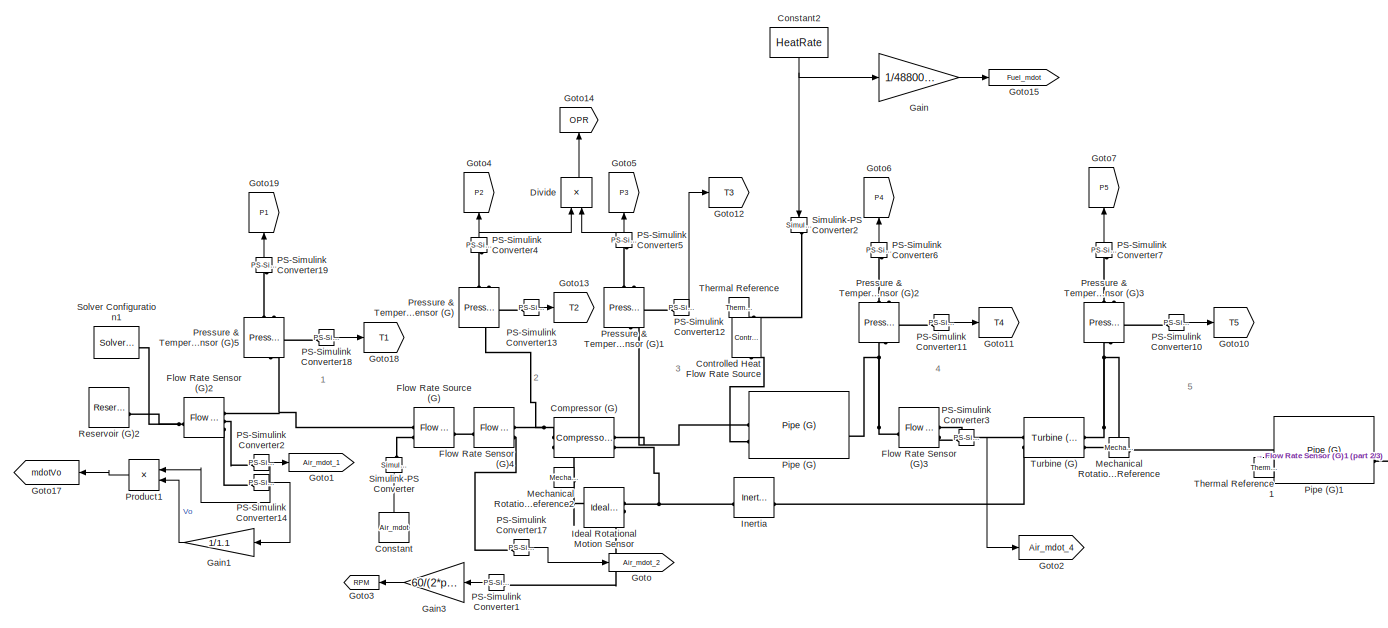
[diagram: root canvas - part 1/3, top center region]
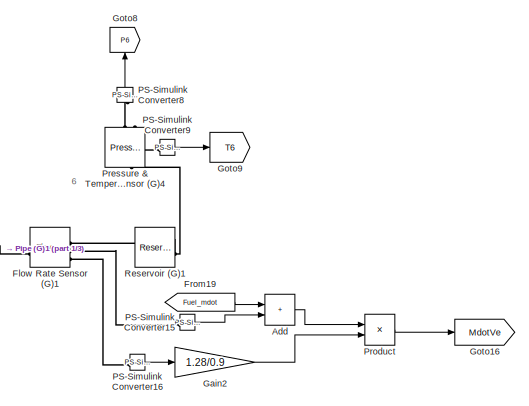
[diagram: root canvas - part 2/3, middle right region]
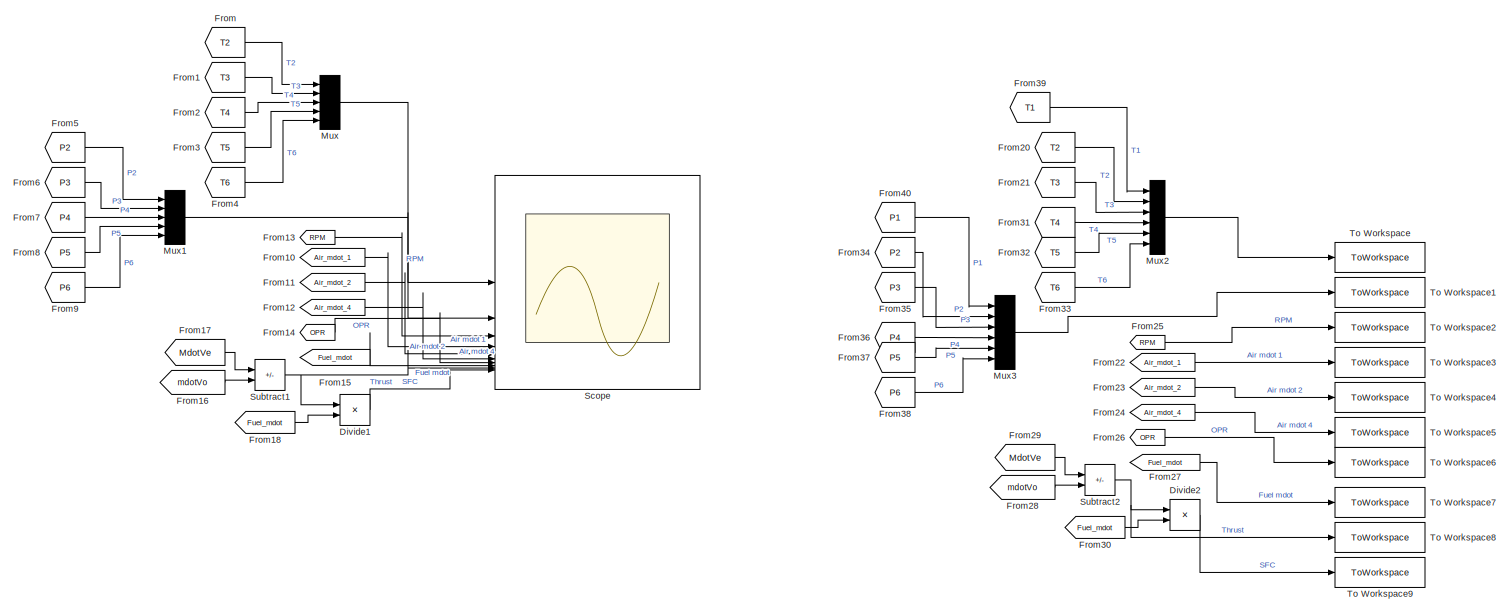
[diagram: root canvas - part 3/3, full width, bottom band]
MODEL slx_e092d5c9a9df
KIND model
CONFIG AbsTol = auto
CONFIG EnableMultiTasking = off
CONFIG FixedStep = auto
CONFIG MaxStep = auto
CONFIG MinStep = auto
CONFIG RelTol = 1e-3
CONFIG SampleTimeConstraint = Unconstrained
CONFIG SolverName = VariableStepAuto
CONFIG StartTime = 0.0
CONFIG StopTime = 10
BLOCK [Sum] Add
  IconShape = rectangular
BLOCK [Reference] Compressor (G)  REF=SimscapeFluids_lib/Gas/Turbomachinery/Compressor (G)
  SourceBlock = SimscapeFluids_lib/Gas/Turbomachinery/Compressor (G)
  SourceType = Compressor (G)
BLOCK [Constant] Constant
  NameLocation = right
  Value = Air_mdot
BLOCK [Constant] Constant2
  NameLocation = left
  Value = HeatRate
BLOCK [Reference] Controlled Heat Flow Rate Source  REF=fl_lib/Thermal/Thermal Sources/Controlled Heat Flow
Rate Source
  NameLocation = left
  SourceBlock = fl_lib/Thermal/Thermal Sources/Controlled Heat Flow\nRate Source
  SourceType = Controlled Heat Flow\nRate Source
BLOCK [Product] Divide
  Inputs = /*
  NameLocation = right
BLOCK [Product] Divide1
  Inputs = */
BLOCK [Product] Divide2
  Inputs = */
BLOCK [Reference] Flow Rate Sensor (G)1  REF=fl_lib/Gas/Sensors/Flow Rate Sensor (G)
  SourceBlock = fl_lib/Gas/Sensors/Flow Rate Sensor (G)
  SourceType = Flow Rate Sensor (G)
BLOCK [Reference] Flow Rate Sensor (G)2  REF=fl_lib/Gas/Sensors/Flow Rate Sensor (G)
  SourceBlock = fl_lib/Gas/Sensors/Flow Rate Sensor (G)
  SourceType = Flow Rate Sensor (G)
BLOCK [Reference] Flow Rate Sensor (G)3  REF=fl_lib/Gas/Sensors/Flow Rate Sensor (G)
  SourceBlock = fl_lib/Gas/Sensors/Flow Rate Sensor (G)
  SourceType = Flow Rate Sensor (G)
BLOCK [Reference] Flow Rate Sensor (G)4  REF=fl_lib/Gas/Sensors/Flow Rate Sensor (G)
  SourceBlock = fl_lib/Gas/Sensors/Flow Rate Sensor (G)
  SourceType = Flow Rate Sensor (G)
BLOCK [Reference] Flow Rate Source (G)  REF=fl_lib/Gas/Sources/Flow Rate Source (G)
  SourceBlock = fl_lib/Gas/Sources/Flow Rate Source (G)
  SourceType = Flow Rate Source (G)
BLOCK [From] From
  GotoTag = T2
BLOCK [From] From1
  GotoTag = T3
BLOCK [From] From10
  GotoTag = Air_mdot_1
BLOCK [From] From11
  GotoTag = Air_mdot_2
BLOCK [From] From12
  GotoTag = Air_mdot_4
BLOCK [From] From13
  GotoTag = RPM
  NameLocation = top
BLOCK [From] From14
  GotoTag = OPR
BLOCK [From] From15
  GotoTag = Fuel_mdot
BLOCK [From] From16
  GotoTag = mdotVo
  NameLocation = top
BLOCK [From] From17
  GotoTag = MdotVe
BLOCK [From] From18
  GotoTag = Fuel_mdot
BLOCK [From] From19
  GotoTag = Fuel_mdot
BLOCK [From] From2
  GotoTag = T4
BLOCK [From] From20
  GotoTag = T2
BLOCK [From] From21
  GotoTag = T3
BLOCK [From] From22
  GotoTag = Air_mdot_1
BLOCK [From] From23
  GotoTag = Air_mdot_2
BLOCK [From] From24
  GotoTag = Air_mdot_4
BLOCK [From] From25
  GotoTag = RPM
  NameLocation = top
BLOCK [From] From26
  GotoTag = OPR
BLOCK [From] From27
  GotoTag = Fuel_mdot
BLOCK [From] From28
  GotoTag = mdotVo
  NameLocation = top
BLOCK [From] From29
  GotoTag = MdotVe
BLOCK [From] From3
  GotoTag = T5
BLOCK [From] From30
  GotoTag = Fuel_mdot
BLOCK [From] From31
  GotoTag = T4
BLOCK [From] From32
  GotoTag = T5
BLOCK [From] From33
  GotoTag = T6
BLOCK [From] From34
  GotoTag = P2
BLOCK [From] From35
  GotoTag = P3
BLOCK [From] From36
  GotoTag = P4
BLOCK [From] From37
  GotoTag = P5
BLOCK [From] From38
  GotoTag = P6
BLOCK [From] From39
  GotoTag = T1
BLOCK [From] From4
  GotoTag = T6
BLOCK [From] From40
  GotoTag = P1
BLOCK [From] From5
  GotoTag = P2
BLOCK [From] From6
  GotoTag = P3
BLOCK [From] From7
  GotoTag = P4
BLOCK [From] From8
  GotoTag = P5
BLOCK [From] From9
  GotoTag = P6
BLOCK [Gain] Gain
  Gain = 1/48800000
BLOCK [Gain] Gain1
  Gain = 1/1.1
  NameLocation = top
BLOCK [Gain] Gain2
  Gain = 1.28/0.9
BLOCK [Gain] Gain3
  Gain = 60/(2*pi)
  NameLocation = top
BLOCK [Goto] Goto
  GotoTag = Air_mdot_2
BLOCK [Goto] Goto1
  GotoTag = Air_mdot_1
BLOCK [Goto] Goto10
  GotoTag = T5
BLOCK [Goto] Goto11
  GotoTag = T4
BLOCK [Goto] Goto12
  GotoTag = T3
BLOCK [Goto] Goto13
  GotoTag = T2
BLOCK [Goto] Goto14
  GotoTag = OPR
  NameLocation = right
BLOCK [Goto] Goto15
  GotoTag = Fuel_mdot
BLOCK [Goto] Goto16
  GotoTag = MdotVe
BLOCK [Goto] Goto17
  GotoTag = mdotVo
  NameLocation = top
BLOCK [Goto] Goto18
  GotoTag = T1
BLOCK [Goto] Goto19
  GotoTag = P1
  NameLocation = right
BLOCK [Goto] Goto2
  GotoTag = Air_mdot_4
BLOCK [Goto] Goto3
  GotoTag = RPM
  NameLocation = top
BLOCK [Goto] Goto4
  GotoTag = P2
  NameLocation = right
BLOCK [Goto] Goto5
  GotoTag = P3
  NameLocation = right
BLOCK [Goto] Goto6
  GotoTag = P4
  NameLocation = right
BLOCK [Goto] Goto7
  GotoTag = P5
  NameLocation = right
BLOCK [Goto] Goto8
  GotoTag = P6
  NameLocation = right
BLOCK [Goto] Goto9
  GotoTag = T6
BLOCK [Reference] Ideal Rotational Motion Sensor  REF=fl_lib/Mechanical/Mechanical Sensors/Ideal Rotational
Motion Sensor
  NameLocation = top
  SourceBlock = fl_lib/Mechanical/Mechanical Sensors/Ideal Rotational\nMotion Sensor
  SourceType = Ideal Rotational\nMotion Sensor
BLOCK [Reference] Inertia  REF=fl_lib/Mechanical/Rotational Elements/Inertia
  SourceBlock = fl_lib/Mechanical/Rotational Elements/Inertia
  SourceType = Inertia
BLOCK [Reference] Mechanical Rotational Reference  REF=fl_lib/Mechanical/Rotational Elements/Mechanical
Rotational Reference
  NameLocation = top
  SourceBlock = fl_lib/Mechanical/Rotational Elements/Mechanical\nRotational Reference
  SourceType = Mechanical\nRotational Reference
BLOCK [Reference] Mechanical Rotational Reference2  REF=fl_lib/Mechanical/Rotational Elements/Mechanical
Rotational Reference
  NameLocation = top
  SourceBlock = fl_lib/Mechanical/Rotational Elements/Mechanical\nRotational Reference
  SourceType = Mechanical\nRotational Reference
BLOCK [Mux] Mux
  DisplayOption = signals
  Inputs = 5
BLOCK [Mux] Mux1
  DisplayOption = signals
  Inputs = 5
BLOCK [Mux] Mux2
  DisplayOption = signals
  Inputs = 6
BLOCK [Mux] Mux3
  DisplayOption = signals
  Inputs = 6
BLOCK [Reference] PS-Simulink Converter1  REF=nesl_utility/PS-Simulink
Converter
  NameLocation = top
  SourceBlock = nesl_utility/PS-Simulink\nConverter
  SourceType = PS-Simulink\nConverter
BLOCK [Reference] PS-Simulink Converter10  REF=nesl_utility/PS-Simulink
Converter
  SourceBlock = nesl_utility/PS-Simulink\nConverter
  SourceType = PS-Simulink\nConverter
BLOCK [Reference] PS-Simulink Converter11  REF=nesl_utility/PS-Simulink
Converter
  SourceBlock = nesl_utility/PS-Simulink\nConverter
  SourceType = PS-Simulink\nConverter
BLOCK [Reference] PS-Simulink Converter12  REF=nesl_utility/PS-Simulink
Converter
  SourceBlock = nesl_utility/PS-Simulink\nConverter
  SourceType = PS-Simulink\nConverter
BLOCK [Reference] PS-Simulink Converter13  REF=nesl_utility/PS-Simulink
Converter
  SourceBlock = nesl_utility/PS-Simulink\nConverter
  SourceType = PS-Simulink\nConverter
BLOCK [Reference] PS-Simulink Converter14  REF=nesl_utility/PS-Simulink
Converter
  SourceBlock = nesl_utility/PS-Simulink\nConverter
  SourceType = PS-Simulink\nConverter
BLOCK [Reference] PS-Simulink Converter15  REF=nesl_utility/PS-Simulink
Converter
  SourceBlock = nesl_utility/PS-Simulink\nConverter
  SourceType = PS-Simulink\nConverter
BLOCK [Reference] PS-Simulink Converter16  REF=nesl_utility/PS-Simulink
Converter
  SourceBlock = nesl_utility/PS-Simulink\nConverter
  SourceType = PS-Simulink\nConverter
BLOCK [Reference] PS-Simulink Converter17  REF=nesl_utility/PS-Simulink
Converter
  SourceBlock = nesl_utility/PS-Simulink\nConverter
  SourceType = PS-Simulink\nConverter
BLOCK [Reference] PS-Simulink Converter18  REF=nesl_utility/PS-Simulink
Converter
  SourceBlock = nesl_utility/PS-Simulink\nConverter
  SourceType = PS-Simulink\nConverter
BLOCK [Reference] PS-Simulink Converter19  REF=nesl_utility/PS-Simulink
Converter
  NameLocation = right
  SourceBlock = nesl_utility/PS-Simulink\nConverter
  SourceType = PS-Simulink\nConverter
BLOCK [Reference] PS-Simulink Converter2  REF=nesl_utility/PS-Simulink
Converter
  SourceBlock = nesl_utility/PS-Simulink\nConverter
  SourceType = PS-Simulink\nConverter
BLOCK [Reference] PS-Simulink Converter3  REF=nesl_utility/PS-Simulink
Converter
  SourceBlock = nesl_utility/PS-Simulink\nConverter
  SourceType = PS-Simulink\nConverter
BLOCK [Reference] PS-Simulink Converter4  REF=nesl_utility/PS-Simulink
Converter
  NameLocation = right
  SourceBlock = nesl_utility/PS-Simulink\nConverter
  SourceType = PS-Simulink\nConverter
BLOCK [Reference] PS-Simulink Converter5  REF=nesl_utility/PS-Simulink
Converter
  NameLocation = right
  SourceBlock = nesl_utility/PS-Simulink\nConverter
  SourceType = PS-Simulink\nConverter
BLOCK [Reference] PS-Simulink Converter6  REF=nesl_utility/PS-Simulink
Converter
  NameLocation = right
  SourceBlock = nesl_utility/PS-Simulink\nConverter
  SourceType = PS-Simulink\nConverter
BLOCK [Reference] PS-Simulink Converter7  REF=nesl_utility/PS-Simulink
Converter
  NameLocation = right
  SourceBlock = nesl_utility/PS-Simulink\nConverter
  SourceType = PS-Simulink\nConverter
BLOCK [Reference] PS-Simulink Converter8  REF=nesl_utility/PS-Simulink
Converter
  NameLocation = right
  SourceBlock = nesl_utility/PS-Simulink\nConverter
  SourceType = PS-Simulink\nConverter
BLOCK [Reference] PS-Simulink Converter9  REF=nesl_utility/PS-Simulink
Converter
  SourceBlock = nesl_utility/PS-Simulink\nConverter
  SourceType = PS-Simulink\nConverter
BLOCK [Reference] Pipe (G)  REF=fl_lib/Gas/Elements/Pipe (G)
  SourceBlock = fl_lib/Gas/Elements/Pipe (G)
  SourceType = Pipe (G)
BLOCK [Reference] Pipe (G)1  REF=fl_lib/Gas/Elements/Pipe (G)
  SourceBlock = fl_lib/Gas/Elements/Pipe (G)
  SourceType = Pipe (G)
BLOCK [Reference] Pressure & Temperature Sensor (G)  REF=fl_lib/Gas/Sensors/Pressure &
Temperature Sensor
(G)
  NameLocation = right
  SourceBlock = fl_lib/Gas/Sensors/Pressure &\nTemperature Sensor\n(G)
  SourceType = Pressure &\nTemperature Sensor\n(G)
BLOCK [Reference] Pressure & Temperature Sensor (G)1  REF=fl_lib/Gas/Sensors/Pressure &
Temperature Sensor
(G)
  NameLocation = right
  SourceBlock = fl_lib/Gas/Sensors/Pressure &\nTemperature Sensor\n(G)
  SourceType = Pressure &\nTemperature Sensor\n(G)
BLOCK [Reference] Pressure & Temperature Sensor (G)2  REF=fl_lib/Gas/Sensors/Pressure &
Temperature Sensor
(G)
  NameLocation = right
  SourceBlock = fl_lib/Gas/Sensors/Pressure &\nTemperature Sensor\n(G)
  SourceType = Pressure &\nTemperature Sensor\n(G)
BLOCK [Reference] Pressure & Temperature Sensor (G)3  REF=fl_lib/Gas/Sensors/Pressure &
Temperature Sensor
(G)
  NameLocation = right
  SourceBlock = fl_lib/Gas/Sensors/Pressure &\nTemperature Sensor\n(G)
  SourceType = Pressure &\nTemperature Sensor\n(G)
BLOCK [Reference] Pressure & Temperature Sensor (G)4  REF=fl_lib/Gas/Sensors/Pressure &
Temperature Sensor
(G)
  NameLocation = right
  SourceBlock = fl_lib/Gas/Sensors/Pressure &\nTemperature Sensor\n(G)
  SourceType = Pressure &\nTemperature Sensor\n(G)
BLOCK [Reference] Pressure & Temperature Sensor (G)5  REF=fl_lib/Gas/Sensors/Pressure &
Temperature Sensor
(G)
  NameLocation = right
  SourceBlock = fl_lib/Gas/Sensors/Pressure &\nTemperature Sensor\n(G)
  SourceType = Pressure &\nTemperature Sensor\n(G)
BLOCK [Product] Product
BLOCK [Product] Product1
  NameLocation = top
BLOCK [Reference] Reservoir (G)1  REF=fl_lib/Gas/Elements/Reservoir (G)
  NameLocation = top
  SourceBlock = fl_lib/Gas/Elements/Reservoir (G)
  SourceType = Reservoir (G)
BLOCK [Reference] Reservoir (G)2  REF=fl_lib/Gas/Elements/Reservoir (G)
  SourceBlock = fl_lib/Gas/Elements/Reservoir (G)
  SourceType = Reservoir (G)
BLOCK [Scope] Scope
  ActiveDisplayString = 2
  ActiveDisplayYMaximum = 721507.2488354966
  ActiveDisplayYMinimum = -67303.986075745488
  ContainerLayout = {"WindowBounds":[-7,-7,1550,830]}
  Floating = off
  GraphicalSettings = {"Style":{"BackgroundColor":[0.12941176470588237,0.12941176470588237,0.12941176470588237],"AxesColor":[0.07058823529411765,0.07058823529411765,0.07058823529411765],"LabelsColor":[0.8509803921568627,0.8509803921568627,0.8509803921568627],"PreserveColors":false,"Visible":[true,true,true,true,true,true,true,true,true,true,true,true,true,true,true,true,true,true],"LineStyle":["-","-","-","-","-","-","...<+7428ch>
  LayoutDimensionsString = [2 5]
  MultipleDisplayCache = [{"MaxYLimMag":1742.0158307526754,"MaxYLimReal":1742.0158307526754,"MinYLimMag":47.554440399837233,"MinYLimReal":47.554440399837233,"PlotAsMagnitudePhase":false,"ShowGrid":true,"ShowLegend":true,"Title":"%<SignalLabel>","YLabel":""},{"MaxYLimMag":721507.2488354966,"MaxYLimReal":721507.2488354966,"MinYLimMag":0,"MinYLimReal":-67303.986075745488,"PlotAsMagnitudePhase":false,"ShowGrid":true,"ShowLege...<+1742ch>
  NumInputPorts = 10
  ScopeFrameLocation = container
  ShowLegend = on
  Visible = on
  WasSavedAsWebScope = on
  WindowPosition = [1.000000,49.000000,1536.000000,793.000000,]
BLOCK [Reference] Simulink-PS Converter  REF=nesl_utility/Simulink-PS
Converter
  NameLocation = right
  SourceBlock = nesl_utility/Simulink-PS\nConverter
  SourceType = Simulink-PS\nConverter
BLOCK [Reference] Simulink-PS Converter2  REF=nesl_utility/Simulink-PS
Converter
  NameLocation = left
  SourceBlock = nesl_utility/Simulink-PS\nConverter
  SourceType = Simulink-PS\nConverter
BLOCK [Reference] Solver Configuration1  REF=nesl_utility/Solver
Configuration
  SourceBlock = nesl_utility/Solver\nConfiguration
  SourceType = Solver\nConfiguration
BLOCK [Sum] Subtract1
  IconShape = rectangular
  Inputs = +-
BLOCK [Sum] Subtract2
  IconShape = rectangular
  Inputs = +-
BLOCK [Reference] Thermal Reference  REF=fl_lib/Thermal/Thermal Elements/Thermal Reference
  NameLocation = right
  SourceBlock = fl_lib/Thermal/Thermal Elements/Thermal Reference
  SourceType = Thermal Reference
BLOCK [Reference] Thermal Reference1  REF=fl_lib/Thermal/Thermal Elements/Thermal Reference
  SourceBlock = fl_lib/Thermal/Thermal Elements/Thermal Reference
  SourceType = Thermal Reference
BLOCK [ToWorkspace] To Workspace
  FixptAsFi = on
  MaxDataPoints = inf
  SampleTime = -1
  SaveFormat = Timeseries
  VariableName = Temps
BLOCK [ToWorkspace] To Workspace1
  FixptAsFi = on
  MaxDataPoints = inf
  SampleTime = -1
  SaveFormat = Timeseries
  VariableName = Pressures
BLOCK [ToWorkspace] To Workspace2
  FixptAsFi = on
  MaxDataPoints = inf
  SampleTime = -1
  SaveFormat = Timeseries
  VariableName = RPM
BLOCK [ToWorkspace] To Workspace3
  FixptAsFi = on
  MaxDataPoints = inf
  SampleTime = -1
  SaveFormat = Timeseries
  VariableName = Air_mdot1
BLOCK [ToWorkspace] To Workspace4
  FixptAsFi = on
  MaxDataPoints = inf
  SampleTime = -1
  SaveFormat = Timeseries
  VariableName = Air_mdot2
BLOCK [ToWorkspace] To Workspace5
  FixptAsFi = on
  MaxDataPoints = inf
  SampleTime = -1
  SaveFormat = Timeseries
  VariableName = Air_mdot4
BLOCK [ToWorkspace] To Workspace6
  FixptAsFi = on
  MaxDataPoints = inf
  SampleTime = -1
  SaveFormat = Timeseries
  VariableName = OPR
BLOCK [ToWorkspace] To Workspace7
  FixptAsFi = on
  MaxDataPoints = inf
  SampleTime = -1
  SaveFormat = Timeseries
  VariableName = Fuel_mdot
BLOCK [ToWorkspace] To Workspace8
  FixptAsFi = on
  MaxDataPoints = inf
  SampleTime = -1
  SaveFormat = Timeseries
  VariableName = Thrust
BLOCK [ToWorkspace] To Workspace9
  FixptAsFi = on
  MaxDataPoints = inf
  SampleTime = -1
  SaveFormat = Timeseries
  VariableName = SFC
BLOCK [Reference] Turbine (G)  REF=SimscapeFluids_lib/Gas/Turbomachinery/Turbine (G)
  SourceBlock = SimscapeFluids_lib/Gas/Turbomachinery/Turbine (G)
  SourceType = Turbine (G)
ANNOTATION (root): 1
ANNOTATION (root): 2
ANNOTATION (root): 3
ANNOTATION (root): 4
ANNOTATION (root): 5
ANNOTATION (root): 6
LINE Add:1 -> Product:1
NET Constant2:1 -> Gain:1, Simulink-PS Converter2:1
LINE Constant:1 -> Simulink-PS Converter:1
LINE Divide1:1 -> Scope:10
LINE Divide2:1 -> To Workspace9:1
LINE Divide:1 -> Goto14:1
LINE From10:1 -> Scope:4
LINE From11:1 -> Scope:5
LINE From12:1 -> Scope:6
LINE From13:1 -> Scope:3
LINE From14:1 -> Scope:7
LINE From15:1 -> Scope:8
LINE From16:1 -> Subtract1:2
LINE From17:1 -> Subtract1:1
LINE From18:1 -> Divide1:2
LINE From19:1 -> Add:1
LINE From1:1 -> Mux:2
LINE From20:1 -> Mux2:2
LINE From21:1 -> Mux2:3
LINE From22:1 -> To Workspace3:1
LINE From23:1 -> To Workspace4:1
LINE From24:1 -> To Workspace5:1
LINE From25:1 -> To Workspace2:1
LINE From26:1 -> To Workspace6:1
LINE From27:1 -> To Workspace7:1
LINE From28:1 -> Subtract2:2
LINE From29:1 -> Subtract2:1
LINE From2:1 -> Mux:3
LINE From30:1 -> Divide2:2
LINE From31:1 -> Mux2:4
LINE From32:1 -> Mux2:5
LINE From33:1 -> Mux2:6
LINE From34:1 -> Mux3:2
LINE From35:1 -> Mux3:3
LINE From36:1 -> Mux3:4
LINE From37:1 -> Mux3:5
LINE From38:1 -> Mux3:6
LINE From39:1 -> Mux2:1
LINE From3:1 -> Mux:4
LINE From40:1 -> Mux3:1
LINE From4:1 -> Mux:5
LINE From5:1 -> Mux1:1
LINE From6:1 -> Mux1:2
LINE From7:1 -> Mux1:3
LINE From8:1 -> Mux1:4
LINE From9:1 -> Mux1:5
LINE From:1 -> Mux:1
LINE Gain1:1 -> Product1:2
LINE Gain2:1 -> Product:2
LINE Gain3:1 -> Goto3:1
LINE Gain:1 -> Goto15:1
LINE Mux1:1 -> Scope:2
LINE Mux2:1 -> To Workspace:1
LINE Mux3:1 -> To Workspace1:1
LINE Mux:1 -> Scope:1
LINE PS-Simulink Converter10:1 -> Goto10:1
LINE PS-Simulink Converter11:1 -> Goto11:1
LINE PS-Simulink Converter12:1 -> Goto12:1
LINE PS-Simulink Converter13:1 -> Goto13:1
LINE PS-Simulink Converter14:1 -> Gain1:1
LINE PS-Simulink Converter15:1 -> Add:2
LINE PS-Simulink Converter16:1 -> Gain2:1
LINE PS-Simulink Converter17:1 -> Goto:1
LINE PS-Simulink Converter18:1 -> Goto18:1
LINE PS-Simulink Converter19:1 -> Goto19:1
LINE PS-Simulink Converter1:1 -> Gain3:1
NET PS-Simulink Converter2:1 -> Goto1:1, Product1:1
LINE PS-Simulink Converter3:1 -> Goto2:1
NET PS-Simulink Converter4:1 -> Divide:1, Goto4:1
NET PS-Simulink Converter5:1 -> Divide:2, Goto5:1
LINE PS-Simulink Converter6:1 -> Goto6:1
LINE PS-Simulink Converter7:1 -> Goto7:1
LINE PS-Simulink Converter8:1 -> Goto8:1
LINE PS-Simulink Converter9:1 -> Goto9:1
LINE Product1:1 -> Goto17:1
LINE Product:1 -> Goto16:1
NET Subtract1:1 -> Divide1:1, Scope:9
NET Subtract2:1 -> Divide2:1, To Workspace8:1
PNET net1: Compressor (G):LConn1 -- Flow Rate Sensor (G)4:RConn1 -- Pressure & Temperature Sensor (G):LConn1
PNET net2: Compressor (G):LConn2 -- Ideal Rotational Motion Sensor:RConn1 -- Mechanical Rotational Reference2:LConn1
PNET net3: Compressor (G):RConn1 -- Pipe (G):LConn1 -- Pressure & Temperature Sensor (G)1:LConn1
PNET net4: Compressor (G):RConn2 -- Ideal Rotational Motion Sensor:LConn1 -- Inertia:RConn1
PLINE Controlled Heat Flow Rate Source:LConn1 -- Pipe (G):LConn2
PLINE Controlled Heat Flow Rate Source:RConn1 -- Simulink-PS Converter2:RConn1
PLINE Controlled Heat Flow Rate Source:RConn2 -- Thermal Reference:LConn1
PLINE Flow Rate Sensor (G)1:LConn1 -- Pipe (G)1:RConn1
PNET net5: Flow Rate Sensor (G)1:RConn1 -- Pressure & Temperature Sensor (G)4:LConn1 -- Reservoir (G)1:LConn1
PLINE Flow Rate Sensor (G)1:RConn2 -- PS-Simulink Converter15:LConn1
PLINE Flow Rate Sensor (G)1:RConn3 -- PS-Simulink Converter16:LConn1
PNET net6: Flow Rate Sensor (G)2:LConn1 -- Reservoir (G)2:LConn1 -- Solver Configuration1:RConn1
PNET net7: Flow Rate Sensor (G)2:RConn1 -- Flow Rate Source (G):LConn1 -- Pressure & Temperature Sensor (G)5:LConn1
PLINE Flow Rate Sensor (G)2:RConn2 -- PS-Simulink Converter2:LConn1
PLINE Flow Rate Sensor (G)2:RConn3 -- PS-Simulink Converter14:LConn1
PNET net8: Flow Rate Sensor (G)3:LConn1 -- Pipe (G):RConn1 -- Pressure & Temperature Sensor (G)2:LConn1
PLINE Flow Rate Sensor (G)3:RConn1 -- Turbine (G):LConn1
PLINE Flow Rate Sensor (G)3:RConn2 -- PS-Simulink Converter3:LConn1
PLINE Flow Rate Sensor (G)4:LConn1 -- Flow Rate Source (G):RConn1
PLINE Flow Rate Sensor (G)4:RConn2 -- PS-Simulink Converter17:LConn1
PLINE Flow Rate Source (G):LConn2 -- Simulink-PS Converter:RConn1
PLINE Ideal Rotational Motion Sensor:RConn2 -- PS-Simulink Converter1:LConn1
PLINE Inertia:LConn1 -- Turbine (G):LConn2
PLINE Mechanical Rotational Reference:LConn1 -- Turbine (G):RConn2
PLINE PS-Simulink Converter10:LConn1 -- Pressure & Temperature Sensor (G)3:RConn2
PLINE PS-Simulink Converter11:LConn1 -- Pressure & Temperature Sensor (G)2:RConn2
PLINE PS-Simulink Converter12:LConn1 -- Pressure & Temperature Sensor (G)1:RConn2
PLINE PS-Simulink Converter13:LConn1 -- Pressure & Temperature Sensor (G):RConn2
PLINE PS-Simulink Converter18:LConn1 -- Pressure & Temperature Sensor (G)5:RConn2
PLINE PS-Simulink Converter19:LConn1 -- Pressure & Temperature Sensor (G)5:RConn1
PLINE PS-Simulink Converter4:LConn1 -- Pressure & Temperature Sensor (G):RConn1
PLINE PS-Simulink Converter5:LConn1 -- Pressure & Temperature Sensor (G)1:RConn1
PLINE PS-Simulink Converter6:LConn1 -- Pressure & Temperature Sensor (G)2:RConn1
PLINE PS-Simulink Converter7:LConn1 -- Pressure & Temperature Sensor (G)3:RConn1
PLINE PS-Simulink Converter8:LConn1 -- Pressure & Temperature Sensor (G)4:RConn1
PLINE PS-Simulink Converter9:LConn1 -- Pressure & Temperature Sensor (G)4:RConn2
PNET net9: Pipe (G)1:LConn1 -- Pressure & Temperature Sensor (G)3:LConn1 -- Turbine (G):RConn1
PLINE Pipe (G)1:LConn2 -- Thermal Reference1:LConn1
note: NET lines group one-source signal fan-out (src -> all destinations, sorted); 1:1 wires keep LINE; PNET lines group multi-terminal physical nets as a canonical sorted terminal list (undirected conserving connections); 2-terminal nets keep the pairwise PLINE form
